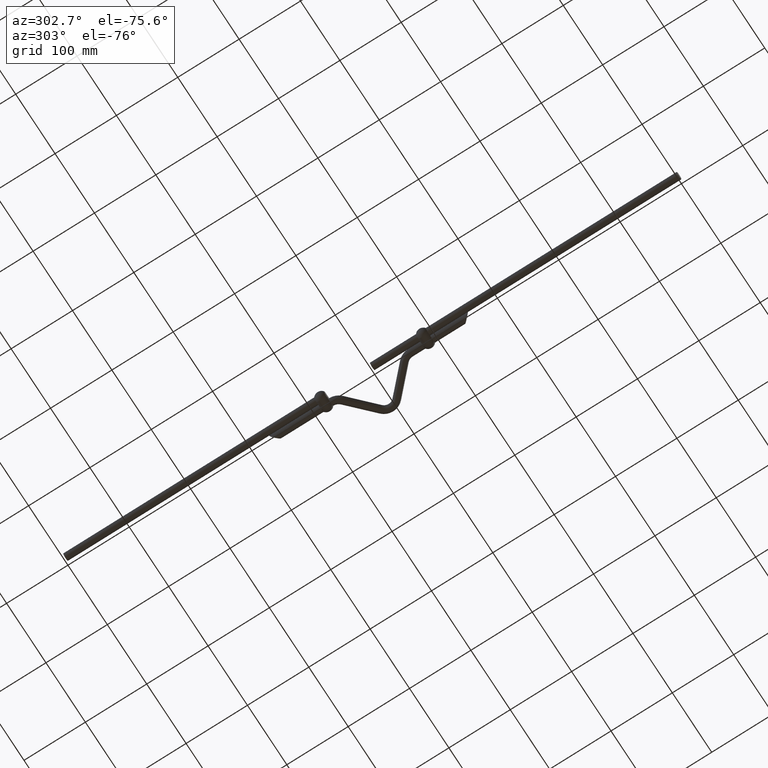
[diagram: clean part render]
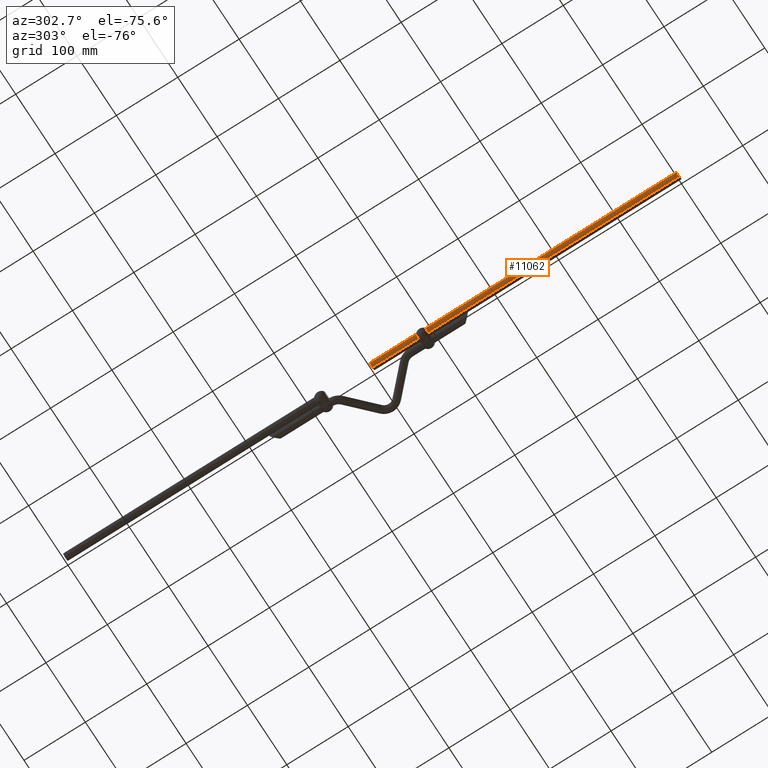
[diagram: same view with one face highlighted and labeled with its STEP entity id]
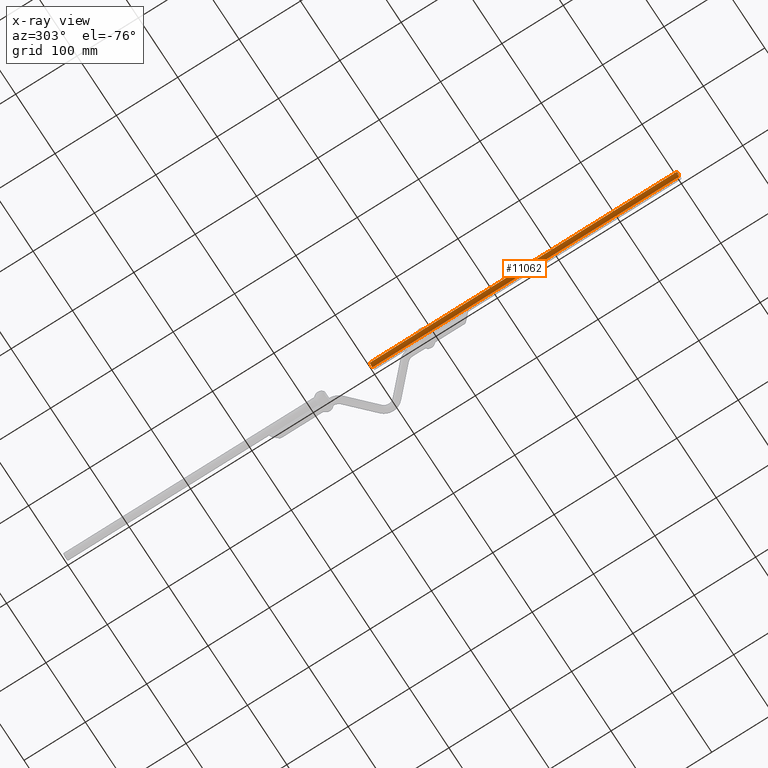
[diagram: x-ray of the same camera — body ghosted, the highlighted face saturated]
A machine part, auxiliary view. The second image highlights one B-rep face of the part: STEP entity #11062.
The next image is the same camera in x-ray: the body ghosted, the highlighted face saturated — about 0% of this face is hidden behind the body in this view.
In plain terms, the highlighted cylindrical surface (edge-blend (fillet) strip) has radius 6 mm, axis along (-0, -1, -0).
Its self-contained STEP definition (entity closure, byte-faithful):
#1245 = CARTESIAN_POINT ( 'NONE',  ( -6.000000000000000000, 500.0000000000000000, -6.000000000000000000 ) ) ;
#1448 = ORIENTED_EDGE ( 'NONE', *, *, #6672, .F. ) ;
#1769 = DIRECTION ( 'NONE',  ( -0.0000000000000000000, -1.000000000000000000, -0.0000000000000000000 ) ) ;
#2356 = VERTEX_POINT ( 'NONE', #1245 ) ;
#2794 = DIRECTION ( 'NONE',  ( -0.0000000000000000000, -1.000000000000000000, -0.0000000000000000000 ) ) ;
#2795 = DIRECTION ( 'NONE',  ( 0.0000000000000000000, 0.0000000000000000000, -1.000000000000000000 ) ) ;
#2840 = CARTESIAN_POINT ( 'NONE',  ( -6.000000000000000000, 0.0000000000000000000, -6.000000000000000000 ) ) ;
#2911 = VERTEX_POINT ( 'NONE', #6559 ) ;
#2934 = LINE ( 'NONE', #2840, #10445 ) ;
#3221 = FACE_OUTER_BOUND ( 'NONE', #9973, .T. ) ;
#3555 = EDGE_CURVE ( 'NONE', #12991, #2356, #12671, .T. ) ;
#3974 = CARTESIAN_POINT ( 'NONE',  ( -5.999999999999999100, 500.0000000000000000, 6.000000000000000000 ) ) ;
#4974 = CARTESIAN_POINT ( 'NONE',  ( -5.999999999999999100, 0.0000000000000000000, 6.000000000000000000 ) ) ;
#6559 = CARTESIAN_POINT ( 'NONE',  ( -5.999999999999999100, 0.0000000000000000000, 6.000000000000000000 ) ) ;
#6672 = EDGE_CURVE ( 'NONE', #12991, #2911, #11765, .T. ) ;
#6857 = CARTESIAN_POINT ( 'NONE',  ( -6.000000000000000000, 0.0000000000000000000, 0.0000000000000000000 ) ) ;
#7023 = DIRECTION ( 'NONE',  ( 0.0000000000000000000, 0.0000000000000000000, -1.000000000000000000 ) ) ;
#7334 = DIRECTION ( 'NONE',  ( -0.0000000000000000000, -1.000000000000000000, -0.0000000000000000000 ) ) ;
#7575 = AXIS2_PLACEMENT_3D ( 'NONE', #11317, #7334, #8317 ) ;
#8030 = CARTESIAN_POINT ( 'NONE',  ( -6.000000000000000000, 500.0000000000000000, 0.0000000000000000000 ) ) ;
#8317 = DIRECTION ( 'NONE',  ( 0.0000000000000000000, 0.0000000000000000000, -1.000000000000000000 ) ) ;
#8816 = AXIS2_PLACEMENT_3D ( 'NONE', #8030, #1769, #2795 ) ;
#8889 = EDGE_CURVE ( 'NONE', #2911, #11880, #12200, .T. ) ;
#9131 = CARTESIAN_POINT ( 'NONE',  ( -6.000000000000000000, 0.0000000000000000000, -6.000000000000000000 ) ) ;
#9193 = EDGE_CURVE ( 'NONE', #2356, #11880, #2934, .T. ) ;
#9864 = VECTOR ( 'NONE', #10071, 1000.000000000000000 ) ;
#9973 = EDGE_LOOP ( 'NONE', ( #1448, #10184, #11091, #10164 ) ) ;
#10071 = DIRECTION ( 'NONE',  ( -0.0000000000000000000, -1.000000000000000000, -0.0000000000000000000 ) ) ;
#10164 = ORIENTED_EDGE ( 'NONE', *, *, #8889, .F. ) ;
#10184 = ORIENTED_EDGE ( 'NONE', *, *, #3555, .T. ) ;
#10445 = VECTOR ( 'NONE', #2794, 1000.000000000000000 ) ;
#11062 = ADVANCED_FACE ( 'NONE', ( #3221 ), #12984, .T. ) ;
#11091 = ORIENTED_EDGE ( 'NONE', *, *, #9193, .T. ) ;
#11317 = CARTESIAN_POINT ( 'NONE',  ( -6.000000000000000000, 0.0000000000000000000, 0.0000000000000000000 ) ) ;
#11492 = AXIS2_PLACEMENT_3D ( 'NONE', #6857, #11916, #7023 ) ;
#11765 = LINE ( 'NONE', #4974, #9864 ) ;
#11880 = VERTEX_POINT ( 'NONE', #9131 ) ;
#11916 = DIRECTION ( 'NONE',  ( -0.0000000000000000000, -1.000000000000000000, -0.0000000000000000000 ) ) ;
#12200 = CIRCLE ( 'NONE', #7575, 6.000000000000000000 ) ;
#12671 = CIRCLE ( 'NONE', #8816, 6.000000000000000000 ) ;
#12984 = CYLINDRICAL_SURFACE ( 'NONE', #11492, 6.000000000000000000 ) ;
#12991 = VERTEX_POINT ( 'NONE', #3974 ) ;